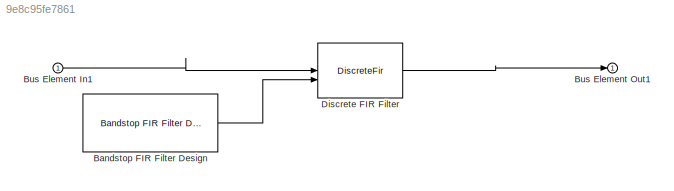
MODEL slx_9e8c95fe7861
KIND model
CONFIG AbsTol = auto
CONFIG EnableMultiTasking = off
CONFIG FixedStep = auto
CONFIG MaxStep = auto
CONFIG MinStep = auto
CONFIG RelTol = 1e-3
CONFIG SampleTimeConstraint = Unconstrained
CONFIG SolverName = VariableStepAuto
CONFIG StartTime = 0.0
CONFIG StopTime = 10.0
BLOCK [Reference] Bandstop FIR Filter Design  REF=dspfiltersrcs/Bandstop FIR Filter Design
  LibrarySourceBlock = dspfdesign/Bandstop FIR Filter Design
  SourceBlock = dspfiltersrcs/Bandstop FIR Filter Design
  SourceType = dsp.simulink.BandstopFIRFilterDesign
BLOCK [Inport] Bus Element In1
BLOCK [Outport] Bus Element Out1
BLOCK [DiscreteFir] Discrete FIR Filter
  CloseFcn = dspblkCoreblockFVToolHelper(gcbh,'close');
  CoefSource = Input port
  CopyFcn = dspblkCoreblockFVToolHelper(gcbh,'copy');
  DeleteFcn = dspblkCoreblockFVToolHelper(gcbh,'close');
  InputPortMap = u0,u1
  InputProcessing = Columns as channels (frame based)
  LoadFcn = dspblkCoreblockFVToolHelper(gcbh,'load');
  ModelCloseFcn = dspblkCoreblockFVToolHelper(gcbh,'close');
  OutputPortMap = o0
  PostSaveFcn = dspblkCoreblockFVToolHelper(gcbh,'postsave');
  PreSaveFcn = dspblkCoreblockFVToolHelper(gcbh,'presave');
LINE Bandstop FIR Filter Design:1 -> Discrete FIR Filter:2
LINE Bus Element In1:1 -> Discrete FIR Filter:1
LINE Discrete FIR Filter:1 -> Bus Element Out1:1
